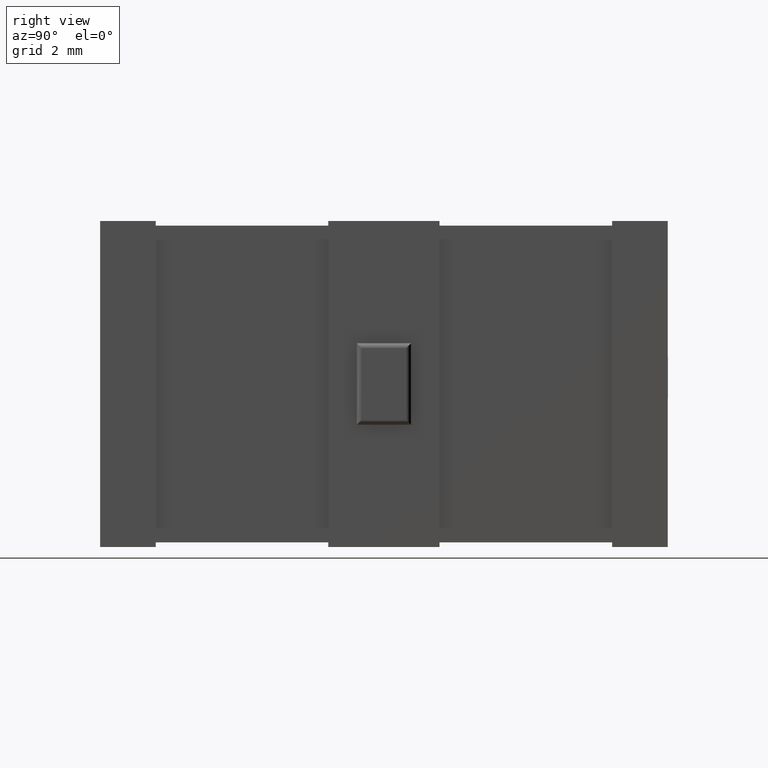
[diagram: clean part render]
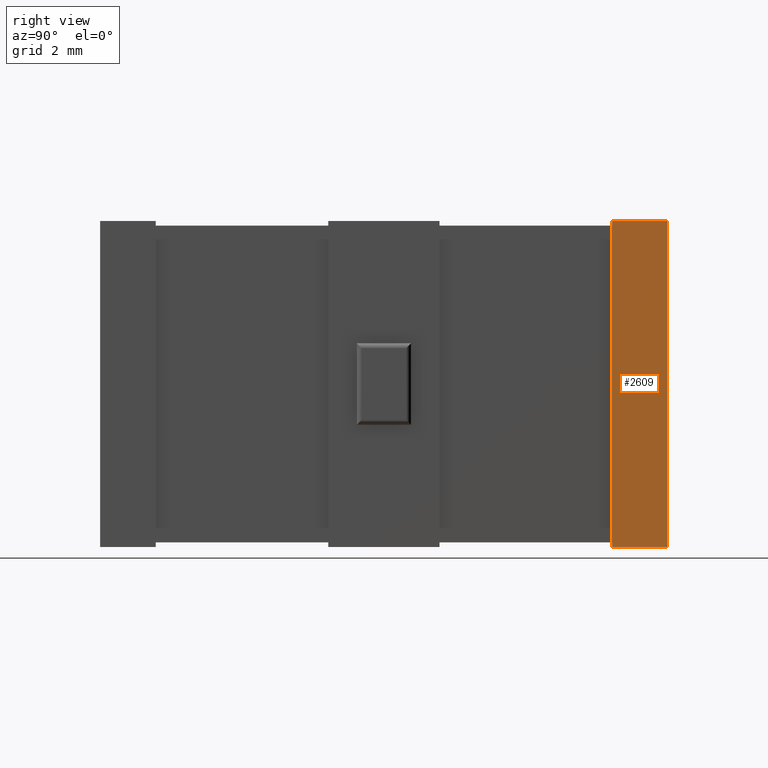
[diagram: same view with one face highlighted and labeled with its STEP entity id]
A machine part, right view. The second image highlights one B-rep face of the part: STEP entity #2609.
In plain terms, the highlighted planar face has unit normal (-1, 0, 0).
Its self-contained STEP definition (entity closure, byte-faithful):
#111 = VERTEX_POINT ( 'NONE', #1326 ) ;
#206 = DIRECTION ( 'NONE',  ( -0.0000000000000000000, -0.0000000000000000000, -1.000000000000000000 ) ) ;
#346 = EDGE_CURVE ( 'NONE', #3365, #111, #2739, .T. ) ;
#505 = LINE ( 'NONE', #3348, #2497 ) ;
#643 = DIRECTION ( 'NONE',  ( -0.0000000000000000000, -0.0000000000000000000, 1.000000000000000000 ) ) ;
#652 = ORIENTED_EDGE ( 'NONE', *, *, #1722, .F. ) ;
#781 = DIRECTION ( 'NONE',  ( 0.0000000000000000000, 1.000000000000000000, 0.0000000000000000000 ) ) ;
#831 = VERTEX_POINT ( 'NONE', #2052 ) ;
#1244 = VERTEX_POINT ( 'NONE', #2801 ) ;
#1326 = CARTESIAN_POINT ( 'NONE',  ( 10.10000000000000000, 18.10000000000000100, 0.0000000000000000000 ) ) ;
#1393 = ORIENTED_EDGE ( 'NONE', *, *, #2287, .F. ) ;
#1479 = PLANE ( 'NONE',  #2086 ) ;
#1518 = DIRECTION ( 'NONE',  ( 0.0000000000000000000, 0.0000000000000000000, 1.000000000000000000 ) ) ;
#1546 = VECTOR ( 'NONE', #781, 1000.000000000000000 ) ;
#1572 = EDGE_LOOP ( 'NONE', ( #1393, #1740, #2763, #652 ) ) ;
#1722 = EDGE_CURVE ( 'NONE', #831, #1244, #2581, .T. ) ;
#1740 = ORIENTED_EDGE ( 'NONE', *, *, #346, .T. ) ;
#1751 = DIRECTION ( 'NONE',  ( -1.000000000000000000, 0.0000000000000000000, 0.0000000000000000000 ) ) ;
#1862 = EDGE_CURVE ( 'NONE', #1244, #111, #505, .T. ) ;
#1914 = CARTESIAN_POINT ( 'NONE',  ( 10.09999999999999800, 16.32620000000000400, 0.0000000000000000000 ) ) ;
#2052 = CARTESIAN_POINT ( 'NONE',  ( 10.09999999999999800, 16.32620000000000400, 10.40000000000000000 ) ) ;
#2086 = AXIS2_PLACEMENT_3D ( 'NONE', #2541, #1751, #1518 ) ;
#2287 = EDGE_CURVE ( 'NONE', #3365, #831, #2569, .T. ) ;
#2292 = VECTOR ( 'NONE', #2785, 1000.000000000000000 ) ;
#2497 = VECTOR ( 'NONE', #206, 1000.000000000000000 ) ;
#2541 = CARTESIAN_POINT ( 'NONE',  ( 10.10000000000000000, 0.0000000000000000000, 10.40000000000000000 ) ) ;
#2569 = LINE ( 'NONE', #3005, #2780 ) ;
#2581 = LINE ( 'NONE', #3018, #2292 ) ;
#2609 = ADVANCED_FACE ( 'NONE', ( #2664 ), #1479, .F. ) ;
#2664 = FACE_OUTER_BOUND ( 'NONE', #1572, .T. ) ;
#2739 = LINE ( 'NONE', #3372, #1546 ) ;
#2763 = ORIENTED_EDGE ( 'NONE', *, *, #1862, .F. ) ;
#2780 = VECTOR ( 'NONE', #643, 1000.000000000000000 ) ;
#2785 = DIRECTION ( 'NONE',  ( 0.0000000000000000000, 1.000000000000000000, 0.0000000000000000000 ) ) ;
#2801 = CARTESIAN_POINT ( 'NONE',  ( 10.10000000000000000, 18.10000000000000100, 10.40000000000000000 ) ) ;
#3005 = CARTESIAN_POINT ( 'NONE',  ( 10.09999999999999800, 16.32620000000000400, 10.24999999999999800 ) ) ;
#3018 = CARTESIAN_POINT ( 'NONE',  ( 10.10000000000000000, 0.0000000000000000000, 10.40000000000000000 ) ) ;
#3348 = CARTESIAN_POINT ( 'NONE',  ( 10.10000000000000000, 18.10000000000000100, 10.40000000000000000 ) ) ;
#3365 = VERTEX_POINT ( 'NONE', #1914 ) ;
#3372 = CARTESIAN_POINT ( 'NONE',  ( 10.10000000000000000, 0.0000000000000000000, 0.0000000000000000000 ) ) ;